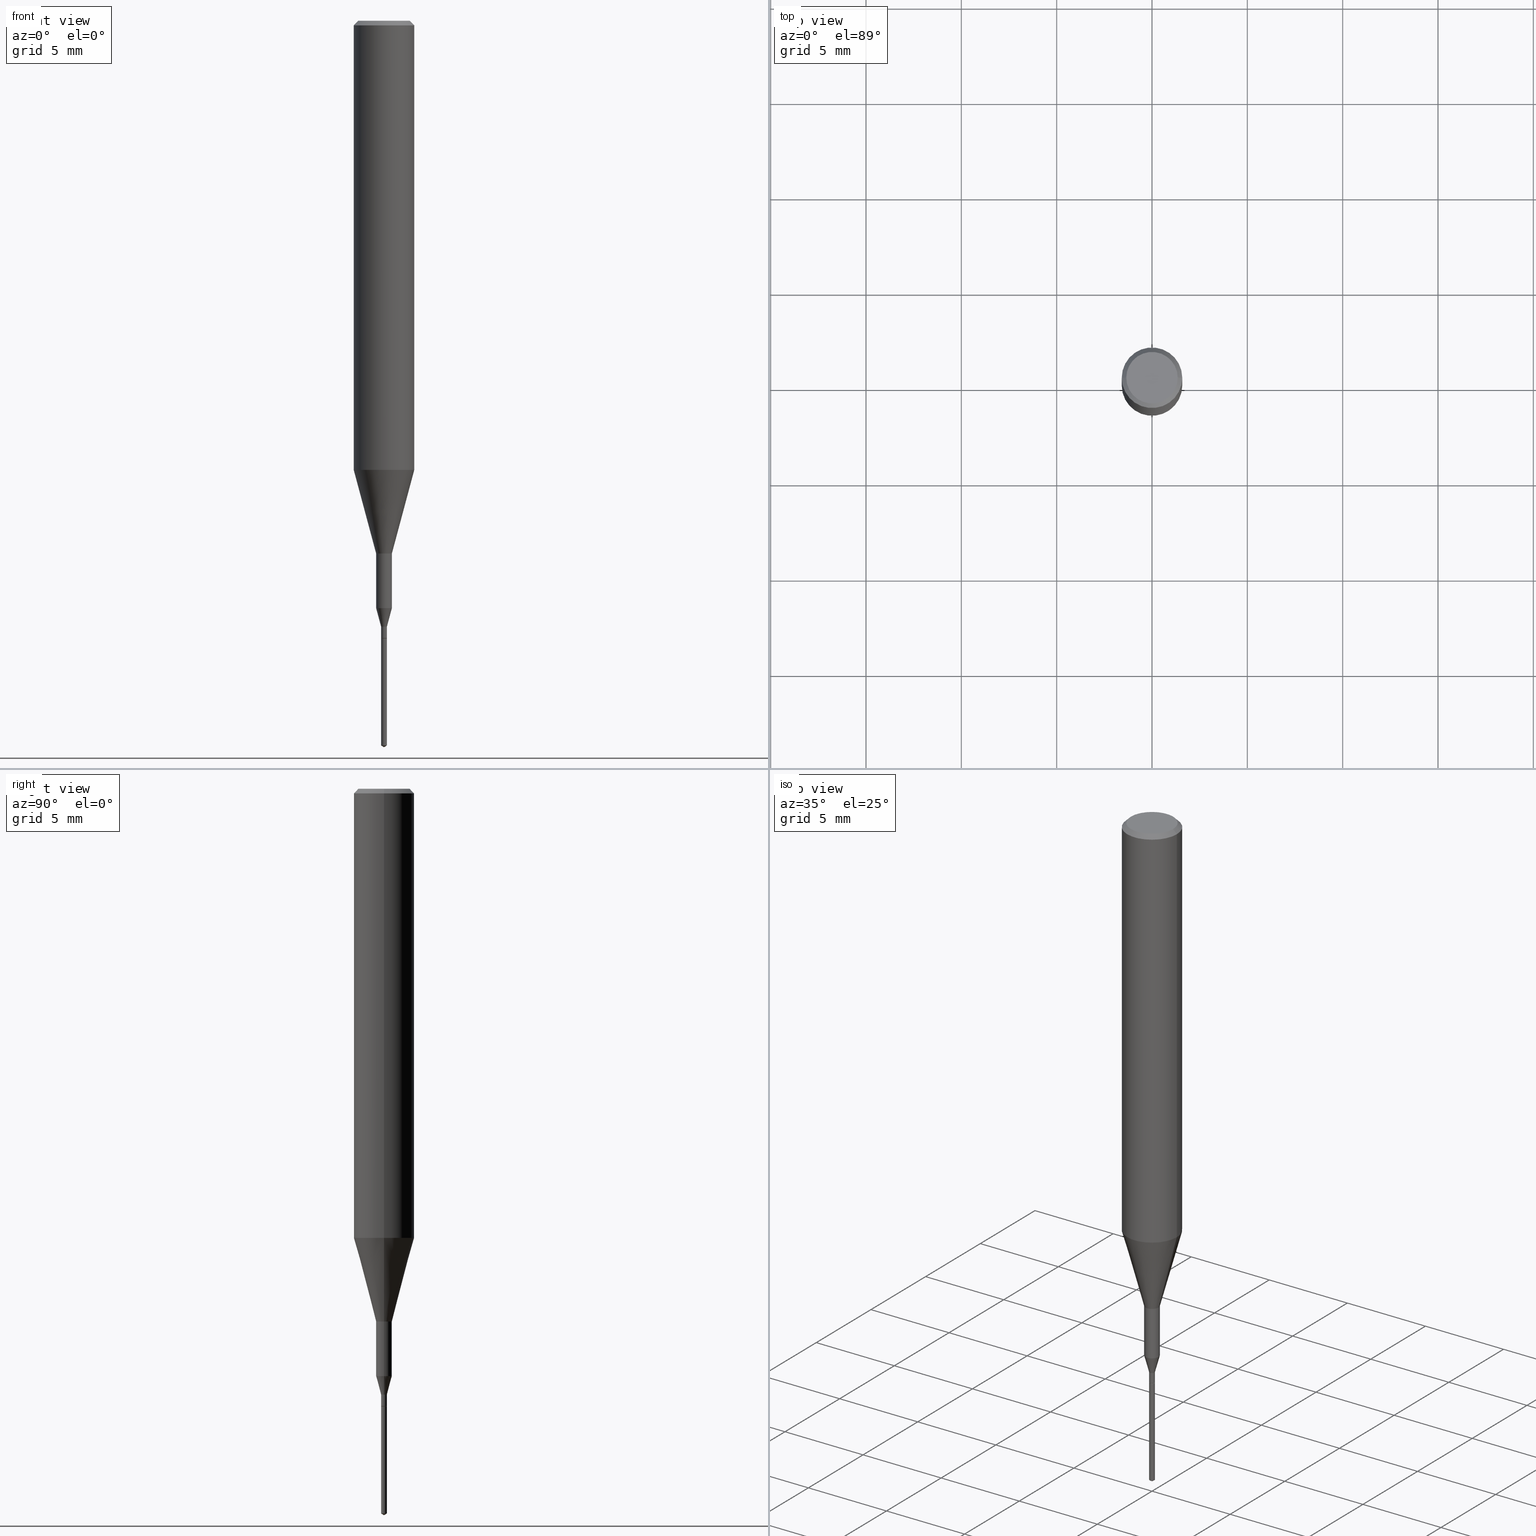
[diagram: canonical four-view strip — front | top / right | iso, engineering-drawing reading convention]
A machine part, canonical four-view strip (front | top / right | iso — engineering-drawing reading convention). The complete STEP part file that produces these views, byte-faithful:
ISO-10303-21;
HEADER;
FILE_DESCRIPTION (( 'STEP AP203' ),
    '1' );
FILE_NAME ('07100.STEP',
    '2024-04-19T13:29:58',
    ( '' ),
    ( '' ),
    'SwSTEP 2.0',
    'SolidWorks 2023',
    '' );
FILE_SCHEMA (( 'CONFIG_CONTROL_DESIGN' ));
ENDSEC;

DATA;
#1 = DIRECTION ( 'NONE',  ( 1.000000000000000000, -6.982962677686245411E-15, 0.000000000000000000 ) ) ;
#2 = CARTESIAN_POINT ( 'NONE',  ( 3.117972727886049049E-29, -4.451638707025011594E-15, -1.275000000000000133 ) ) ;
#3 = AXIS2_PLACEMENT_3D ( 'NONE', #407, #585, #452 ) ;
#4 = VECTOR ( 'NONE', #391, 39.37007874015748143 ) ;
#5 = DIRECTION ( 'NONE',  ( -2.445468806185136597E-29, 3.491481338843145583E-15, 1.000000000000000000 ) ) ;
#6 = AXIS2_PLACEMENT_3D ( 'NONE', #241, #5, #507 ) ;
#7 = CARTESIAN_POINT ( 'NONE',  ( 0.000000000000000000, 0.000000000000000000, 0.000000000000000000 ) ) ;
#8 = EDGE_CURVE ( 'NONE', #190, #219, #488, .T. ) ;
#9 = CARTESIAN_POINT ( 'NONE',  ( -0.005499999999999999681, -4.412558856558206444E-15, -1.275000000000000133 ) ) ;
#10 = VECTOR ( 'NONE', #253, 39.37007874015748143 ) ;
#11 = DIRECTION ( 'NONE',  ( 1.000000000000000000, -6.982962677686311676E-15, 0.000000000000000000 ) ) ;
#12 = CARTESIAN_POINT ( 'NONE',  ( 0.000000000000000000, 0.000000000000000000, 0.000000000000000000 ) ) ;
#13 = FACE_OUTER_BOUND ( 'NONE', #586, .T. ) ;
#14 = ADVANCED_FACE ( 'NONE', ( #103 ), #98, .F. ) ;
#15 =( NAMED_UNIT ( * ) SI_UNIT ( $, .STERADIAN. ) SOLID_ANGLE_UNIT ( ) );
#16 = CARTESIAN_POINT ( 'NONE',  ( 2.965733684749277143E-29, -4.234281700952803100E-15, -1.212746479222419183 ) ) ;
#17 = EDGE_LOOP ( 'NONE', ( #451, #576, #518, #168 ) ) ;
#18 = APPROVAL ( #406, 'UNSPECIFIED' ) ;
#19 = APPROVAL_DATE_TIME ( #257, #404 ) ;
#20 = LINE ( 'NONE', #403, #223 ) ;
#21 = AXIS2_PLACEMENT_3D ( 'NONE', #326, #450, #41 ) ;
#22 = ORIENTED_EDGE ( 'NONE', *, *, #62, .F. ) ;
#23 = LINE ( 'NONE', #174, #115 ) ;
#24 = CARTESIAN_POINT ( 'NONE',  ( 0.006000000000000000125, -4.189777606611760174E-17, 2.925706065477561230E-31 ) ) ;
#25 = LINE ( 'NONE', #178, #322 ) ;
#26 = EDGE_LOOP ( 'NONE', ( #484, #311, #181, #119 ) ) ;
#27 = EDGE_CURVE ( 'NONE', #74, #175, #382, .T. ) ;
#28 = VERTEX_POINT ( 'NONE', #100 ) ;
#29 = DATE_AND_TIME ( #533, #101 ) ;
#30 = ORIENTED_EDGE ( 'NONE', *, *, #342, .T. ) ;
#31 = DIRECTION ( 'NONE',  ( -1.000000000000000000, 6.982962677686266711E-15, 0.000000000000000000 ) ) ;
#32 = VECTOR ( 'NONE', #160, 39.37007874015748143 ) ;
#33 = CIRCLE ( 'NONE', #472, 0.006000000000000000125 ) ;
#34 = ORIENTED_EDGE ( 'NONE', *, *, #295, .F. ) ;
#35 = DIRECTION ( 'NONE',  ( -6.982962677686265922E-15, -1.000000000000000000, 0.000000000000000000 ) ) ;
#36 = ORIENTED_EDGE ( 'NONE', *, *, #525, .T. ) ;
#37 = PERSON_AND_ORGANIZATION ( #333, #203 ) ;
#38 = EDGE_CURVE ( 'NONE', #39, #190, #408, .T. ) ;
#39 = VERTEX_POINT ( 'NONE', #374 ) ;
#40 = DIRECTION ( 'NONE',  ( 1.000000000000000000, -6.982962677686245411E-15, 0.000000000000000000 ) ) ;
#41 = DIRECTION ( 'NONE',  ( 1.000000000000000000, -6.982962677686265922E-15, 0.000000000000000000 ) ) ;
#42 = CC_DESIGN_PERSON_AND_ORGANIZATION_ASSIGNMENT ( #211, #386, ( #443 ) ) ;
#43 = CARTESIAN_POINT ( 'NONE',  ( 2.267909797027042920E-29, -3.237974131778804114E-15, -0.9273926501499395458 ) ) ;
#44 = DIRECTION ( 'NONE',  ( 1.000000000000000000, -6.982962677686266711E-15, 4.875930095424100059E-29 ) ) ;
#45 = ORIENTED_EDGE ( 'NONE', *, *, #165, .F. ) ;
#46 = FACE_OUTER_BOUND ( 'NONE', #356, .T. ) ;
#47 = AXIS2_PLACEMENT_3D ( 'NONE', #290, #147, #239 ) ;
#48 = DIRECTION ( 'NONE',  ( 2.445468806185136597E-29, -3.491481338843145583E-15, -1.000000000000000000 ) ) ;
#49 = APPROVAL_PERSON_ORGANIZATION ( #447, #18, #90 ) ;
#50 = FACE_OUTER_BOUND ( 'NONE', #389, .T. ) ;
#51 = ADVANCED_FACE ( 'NONE', ( #506 ), #297, .T. ) ;
#52 = AXIS2_PLACEMENT_3D ( 'NONE', #312, #227, #521 ) ;
#53 = AXIS2_PLACEMENT_3D ( 'NONE', #430, #568, #307 ) ;
#54 = ADVANCED_FACE ( 'NONE', ( #46 ), #413, .T. ) ;
#55 = LINE ( 'NONE', #556, #195 ) ;
#56 = DIRECTION ( 'NONE',  ( -0.7071067811866064146, 7.493145998870567153E-15, 0.7071067811864886199 ) ) ;
#57 = DIMENSIONAL_EXPONENTS ( 1.000000000000000000, 0.000000000000000000, 0.000000000000000000, 0.000000000000000000, 0.000000000000000000, 0.000000000000000000, 0.000000000000000000 ) ;
#58 = CC_DESIGN_APPROVAL ( #93, ( #395 ) ) ;
#59 = CIRCLE ( 'NONE', #396, 0.01624999999999999709 ) ;
#60 = DIRECTION ( 'NONE',  ( -2.448375364327009624E-29, 3.487318982152967684E-15, 1.000000000000000000 ) ) ;
#61 = CARTESIAN_POINT ( 'NONE',  ( 3.059281476537606349E-29, -4.367843154892775478E-15, -1.251000000000000112 ) ) ;
#62 = EDGE_CURVE ( 'NONE', #229, #279, #485, .T. ) ;
#63 = CARTESIAN_POINT ( 'NONE',  ( -0.01624999999999999709, 1.154631945610162595E-16, -7.993269521664220284E-31 ) ) ;
#64 = CC_DESIGN_PERSON_AND_ORGANIZATION_ASSIGNMENT ( #265, #278, ( #173 ) ) ;
#65 = CARTESIAN_POINT ( 'NONE',  ( 3.117972727886049049E-29, -4.451638707025011594E-15, -1.275000000000000133 ) ) ;
#66 = ORIENTED_EDGE ( 'NONE', *, *, #351, .F. ) ;
#67 = COORDINATED_UNIVERSAL_TIME_OFFSET ( 5, 0, .BEHIND. ) ;
#68 = LINE ( 'NONE', #348, #111 ) ;
#69 = ORIENTED_EDGE ( 'NONE', *, *, #440, .F. ) ;
#70 = DIRECTION ( 'NONE',  ( -2.445468806185136597E-29, 3.491481338843145583E-15, 1.000000000000000000 ) ) ;
#71 = DIRECTION ( 'NONE',  ( -1.000000000000000000, 6.982962677686265922E-15, -4.876176775795935793E-29 ) ) ;
#72 = ADVANCED_FACE ( 'NONE', ( #504 ), #332, .T. ) ;
#73 =( NAMED_UNIT ( * ) PLANE_ANGLE_UNIT ( ) SI_UNIT ( $, .RADIAN. ) );
#74 = VERTEX_POINT ( 'NONE', #236 ) ;
#75 = FACE_OUTER_BOUND ( 'NONE', #583, .T. ) ;
#76 = ORIENTED_EDGE ( 'NONE', *, *, #295, .T. ) ;
#77 = EDGE_LOOP ( 'NONE', ( #95, #69 ) ) ;
#78 = PERSON_AND_ORGANIZATION ( #333, #203 ) ;
#79 = ORIENTED_EDGE ( 'NONE', *, *, #249, .F. ) ;
#80 = CARTESIAN_POINT ( 'NONE',  ( -0.01625000000000000056, -4.118818506391786915E-15, -1.212746479222419183 ) ) ;
#81 = ORIENTED_EDGE ( 'NONE', *, *, #86, .F. ) ;
#82 = ORIENTED_EDGE ( 'NONE', *, *, #550, .F. ) ;
#83 = CARTESIAN_POINT ( 'NONE',  ( -0.06250000000000011102, -2.793884921928740709E-15, -0.9273926501499395458 ) ) ;
#84 = DESIGN_CONTEXT ( 'detailed design', #385, 'design' ) ;
#85 = AXIS2_PLACEMENT_3D ( 'NONE', #349, #526, #122 ) ;
#86 = EDGE_CURVE ( 'NONE', #237, #486, #138, .T. ) ;
#87 = ORIENTED_EDGE ( 'NONE', *, *, #8, .T. ) ;
#88 = CONICAL_SURFACE ( 'NONE', #387, 0.005499999999999999681, 0.7853981633975316567 ) ;
#89 = CIRCLE ( 'NONE', #275, 0.06250000000000000000 ) ;
#90 = APPROVAL_ROLE ( '' ) ;
#91 = ORIENTED_EDGE ( 'NONE', *, *, #461, .T. ) ;
#92 = DIRECTION ( 'NONE',  ( -2.445468806185136597E-29, 3.491481338843145583E-15, 1.000000000000000000 ) ) ;
#93 = APPROVAL ( #579, 'UNSPECIFIED' ) ;
#94 = CARTESIAN_POINT ( 'NONE',  ( 3.116749993482957368E-29, -4.449892966355590090E-15, -1.274500000000000188 ) ) ;
#95 = ORIENTED_EDGE ( 'NONE', *, *, #27, .F. ) ;
#96 = APPROVAL_DATE_TIME ( #29, #93 ) ;
#97 = FACE_OUTER_BOUND ( 'NONE', #287, .T. ) ;
#98 = PLANE ( 'NONE',  #557 ) ;
#99 = CYLINDRICAL_SURFACE ( 'NONE', #286, 0.006000000000000000992 ) ;
#100 = CARTESIAN_POINT ( 'NONE',  ( 0.06250000000000011102, -3.674409299134196572E-15, -0.9273926501499395458 ) ) ;
#101 = LOCAL_TIME ( 9, 29, 58.00000000000000000, #228 ) ;
#102 = CARTESIAN_POINT ( 'NONE',  ( 2.292627005798581499E-31, -3.273263755165471417E-17, -0.009375000000000063838 ) ) ;
#103 = FACE_OUTER_BOUND ( 'NONE', #369, .T. ) ;
#104 = DIRECTION ( 'NONE',  ( -6.982962677686265133E-15, -1.000000000000000000, 3.468864327941785119E-15 ) ) ;
#105 = LINE ( 'NONE', #246, #136 ) ;
#106 = AXIS2_PLACEMENT_3D ( 'NONE', #561, #376, #206 ) ;
#107 = CYLINDRICAL_SURFACE ( 'NONE', #292, 0.06250000000000005551 ) ;
#108 = DIRECTION ( 'NONE',  ( -2.448375364327009624E-29, 3.487318982152967684E-15, 1.000000000000000000 ) ) ;
#109 = DIRECTION ( 'NONE',  ( 6.090539988449690872E-15, 0.8571673007021015644, 0.5150380749100720301 ) ) ;
#110 = AXIS2_PLACEMENT_3D ( 'NONE', #43, #410, #588 ) ;
#111 = VECTOR ( 'NONE', #315, 39.37007874015748143 ) ;
#112 = CARTESIAN_POINT ( 'NONE',  ( 0.01625000000000000056, -4.347754844465204776E-15, -1.212746479222419183 ) ) ;
#113 = CARTESIAN_POINT ( 'NONE',  ( 0.01624999999999999709, -3.954102616239861778E-15, -1.100000000000000089 ) ) ;
#114 = VERTEX_POINT ( 'NONE', #542 ) ;
#115 = VECTOR ( 'NONE', #261, 39.37007874015748143 ) ;
#116 = APPROVAL_STATUS ( 'not_yet_approved' ) ;
#117 = DIRECTION ( 'NONE',  ( -2.445468806185136877E-29, 3.491481338843145188E-15, 1.000000000000000000 ) ) ;
#118 = ORIENTED_EDGE ( 'NONE', *, *, #375, .T. ) ;
#119 = ORIENTED_EDGE ( 'NONE', *, *, #582, .F. ) ;
#120 = ADVANCED_FACE ( 'NONE', ( #198 ), #196, .T. ) ;
#121 = LINE ( 'NONE', #338, #251 ) ;
#122 = DIRECTION ( 'NONE',  ( 1.000000000000000000, -6.982962677686265922E-15, 0.000000000000000000 ) ) ;
#123 = CARTESIAN_POINT ( 'NONE',  ( 4.263256414563719053E-17, 0.005999999999995548824, -1.275000000000000133 ) ) ;
#124 = CARTESIAN_POINT ( 'NONE',  ( 4.263256414564260779E-17, 0.005999999999994776005, -1.496394836285834584 ) ) ;
#125 = LINE ( 'NONE', #388, #546 ) ;
#126 = APPLICATION_CONTEXT ( 'configuration controlled 3d designs of mechanical parts and assemblies' ) ;
#127 = ORIENTED_EDGE ( 'NONE', *, *, #179, .F. ) ;
#128 = ORIENTED_EDGE ( 'NONE', *, *, #240, .T. ) ;
#129 = CYLINDRICAL_SURFACE ( 'NONE', #444, 0.006000000000000000992 ) ;
#130 = EDGE_CURVE ( 'NONE', #368, #28, #498, .T. ) ;
#131 = ORIENTED_EDGE ( 'NONE', *, *, #281, .T. ) ;
#132 = EDGE_CURVE ( 'NONE', #441, #39, #293, .T. ) ;
#133 = ADVANCED_FACE ( 'NONE', ( #157 ), #541, .T. ) ;
#134 = ORIENTED_EDGE ( 'NONE', *, *, #179, .T. ) ;
#135 = CARTESIAN_POINT ( 'NONE',  ( 3.672563046490514996E-29, -5.230978473229451328E-15, -1.500000000000000222 ) ) ;
#136 = VECTOR ( 'NONE', #109, 39.37007874015748143 ) ;
#137 = ORIENTED_EDGE ( 'NONE', *, *, #156, .T. ) ;
#138 = CIRCLE ( 'NONE', #445, 0.05312499999999999861 ) ;
#139 = PERSON_AND_ORGANIZATION_ROLE ( 'classification_officer' ) ;
#140 = CARTESIAN_POINT ( 'NONE',  ( 0.06250000000000000000, -4.615137624123754923E-16, -0.009375000000000063838 ) ) ;
#141 = CARTESIAN_POINT ( 'NONE',  ( 2.690015686803650369E-29, -3.840629472727460101E-15, -1.100000000000000089 ) ) ;
#142 = CARTESIAN_POINT ( 'NONE',  ( 2.690015686803650369E-29, -3.840629472727460101E-15, -1.100000000000000089 ) ) ;
#143 = ADVANCED_FACE ( 'NONE', ( #50 ), #365, .T. ) ;
#144 = CARTESIAN_POINT ( 'NONE',  ( 2.267909797027042920E-29, -3.237974131778804114E-15, -0.9273926501499395458 ) ) ;
#145 = DIRECTION ( 'NONE',  ( 1.000000000000000000, -6.982962677686259611E-15, 0.000000000000000000 ) ) ;
#146 = AXIS2_PLACEMENT_3D ( 'NONE', #427, #212, #263 ) ;
#147 = DIRECTION ( 'NONE',  ( -2.445468806185136597E-29, 3.491481338843145583E-15, 1.000000000000000000 ) ) ;
#148 = DIRECTION ( 'NONE',  ( -2.445468806185136597E-29, 3.491481338843145583E-15, 1.000000000000000000 ) ) ;
#149 = EDGE_CURVE ( 'NONE', #366, #316, #89, .T. ) ;
#150 = CC_DESIGN_PERSON_AND_ORGANIZATION_ASSIGNMENT ( #520, #309, ( #247 ) ) ;
#151 = CARTESIAN_POINT ( 'NONE',  ( -4.189777606608642325E-17, -0.006000000000004453160, -1.275000000000000133 ) ) ;
#152 = CARTESIAN_POINT ( 'NONE',  ( 3.117972727886049049E-29, -4.451638707025011594E-15, -1.275000000000000133 ) ) ;
#153 = LENGTH_MEASURE_WITH_UNIT ( LENGTH_MEASURE( 0.02539999999999999897 ), #476 );
#154 = DIRECTION ( 'NONE',  ( -2.448375364327009904E-29, 3.487318982152967289E-15, 1.000000000000000000 ) ) ;
#155 = CLOSED_SHELL ( 'NONE', ( #51, #256, #402, #54, #143, #72, #200, #259, #547, #390, #553, #177, #120, #508, #335, #421 ) ) ;
#156 = EDGE_CURVE ( 'NONE', #532, #210, #418, .T. ) ;
#157 = FACE_OUTER_BOUND ( 'NONE', #221, .T. ) ;
#158 = VECTOR ( 'NONE', #60, 39.37007874015748143 ) ;
#159 = AXIS2_PLACEMENT_3D ( 'NONE', #216, #527, #442 ) ;
#160 = DIRECTION ( 'NONE',  ( 0.2588190451025203509, 1.565188264969630053E-15, 0.9659258262890684232 ) ) ;
#161 = FACE_OUTER_BOUND ( 'NONE', #17, .T. ) ;
#162 = EDGE_LOOP ( 'NONE', ( #495, #399 ) ) ;
#163 = AXIS2_PLACEMENT_3D ( 'NONE', #398, #491, #354 ) ;
#164 = AXIS2_PLACEMENT_3D ( 'NONE', #383, #154, #384 ) ;
#165 = EDGE_CURVE ( 'NONE', #188, #436, #245, .T. ) ;
#166 = CARTESIAN_POINT ( 'NONE',  ( 2.965733684749277143E-29, -4.234281700952803100E-15, -1.212746479222419183 ) ) ;
#167 = FACE_OUTER_BOUND ( 'NONE', #313, .T. ) ;
#168 = ORIENTED_EDGE ( 'NONE', *, *, #469, .F. ) ;
#169 = LINE ( 'NONE', #123, #158 ) ;
#170 = DIRECTION ( 'NONE',  ( -2.445468806185136597E-29, 3.491481338843145583E-15, 1.000000000000000000 ) ) ;
#171 = ORIENTED_EDGE ( 'NONE', *, *, #523, .T. ) ;
#172 = APPROVAL_ROLE ( '' ) ;
#173 = PRODUCT_DEFINITION_FORMATION_WITH_SPECIFIED_SOURCE ( 'ANY', '', #247, .NOT_KNOWN. ) ;
#174 = CARTESIAN_POINT ( 'NONE',  ( -0.06250000000000000000, 4.037025298037369491E-16, -0.009375000000000063838 ) ) ;
#175 = VERTEX_POINT ( 'NONE', #516 ) ;
#176 = ORIENTED_EDGE ( 'NONE', *, *, #536, .F. ) ;
#177 = ADVANCED_FACE ( 'NONE', ( #161 ), #300, .T. ) ;
#178 = CARTESIAN_POINT ( 'NONE',  ( 0.06250000000000005551, -4.364351673553920638E-16, 3.047610484872462323E-30 ) ) ;
#179 = EDGE_CURVE ( 'NONE', #464, #350, #105, .T. ) ;
#180 = EDGE_LOOP ( 'NONE', ( #455, #272, #186, #34 ) ) ;
#181 = ORIENTED_EDGE ( 'NONE', *, *, #197, .F. ) ;
#182 = DIRECTION ( 'NONE',  ( -6.982962677686265922E-15, -1.000000000000000000, 0.000000000000000000 ) ) ;
#183 = ORIENTED_EDGE ( 'NONE', *, *, #525, .F. ) ;
#184 = COORDINATED_UNIVERSAL_TIME_OFFSET ( 5, 0, .BEHIND. ) ;
#185 = CARTESIAN_POINT ( 'NONE',  ( 3.665151323228738497E-29, -5.241592482789406233E-15, -1.500000000000000222 ) ) ;
#186 = ORIENTED_EDGE ( 'NONE', *, *, #306, .T. ) ;
#187 = ADVANCED_FACE ( 'NONE', ( #13 ), #549, .T. ) ;
#188 = VERTEX_POINT ( 'NONE', #204 ) ;
#189 = LINE ( 'NONE', #24, #10 ) ;
#190 = VERTEX_POINT ( 'NONE', #113 ) ;
#191 = VECTOR ( 'NONE', #282, 39.37007874015748143 ) ;
#192 = ORIENTED_EDGE ( 'NONE', *, *, #563, .T. ) ;
#193 = DIRECTION ( 'NONE',  ( 1.000000000000000000, -6.982962677686192558E-15, 0.000000000000000000 ) ) ;
#194 = APPROVAL_PERSON_ORGANIZATION ( #515, #404, #305 ) ;
#195 = VECTOR ( 'NONE', #425, 39.37007874015748143 ) ;
#196 = CONICAL_SURFACE ( 'NONE', #21, 0.06250000000000011102, 0.2617993877991501850 ) ;
#197 = EDGE_CURVE ( 'NONE', #210, #532, #497, .T. ) ;
#198 = FACE_OUTER_BOUND ( 'NONE', #435, .T. ) ;
#199 = PRODUCT_DEFINITION_SHAPE ( 'NONE', 'NONE',  #443 ) ;
#200 = ADVANCED_FACE ( 'NONE', ( #303 ), #88, .T. ) ;
#201 = CARTESIAN_POINT ( 'NONE',  ( 2.292627005798581499E-31, -3.273263755165471417E-17, -0.009375000000000063838 ) ) ;
#202 = LINE ( 'NONE', #514, #302 ) ;
#203 = ORGANIZATION ( 'UNSPECIFIED', 'UNSPECIFIED', '' ) ;
#204 = CARTESIAN_POINT ( 'NONE',  ( 0.006000000000000018339, -4.409740930958893142E-15, -1.251000000000000112 ) ) ;
#205 = DIRECTION ( 'NONE',  ( 0.000000000000000000, 0.000000000000000000, 1.000000000000000000 ) ) ;
#206 = DIRECTION ( 'NONE',  ( 1.000000000000000000, -6.982962677686258033E-15, 0.000000000000000000 ) ) ;
#207 = AXIS2_PLACEMENT_3D ( 'NONE', #284, #544, #1 ) ;
#208 = DIRECTION ( 'NONE',  ( 1.000000000000000000, 0.000000000000000000, 0.000000000000000000 ) ) ;
#209 = DIRECTION ( 'NONE',  ( 0.2588190451025214611, 1.565188264969620982E-15, 0.9659258262890679791 ) ) ;
#210 = VERTEX_POINT ( 'NONE', #151 ) ;
#211 = PERSON_AND_ORGANIZATION ( #333, #203 ) ;
#212 = DIRECTION ( 'NONE',  ( -2.445468806185136597E-29, 3.491481338843145583E-15, 1.000000000000000000 ) ) ;
#213 = ORIENTED_EDGE ( 'NONE', *, *, #461, .F. ) ;
#214 = AXIS2_PLACEMENT_3D ( 'NONE', #16, #468, #462 ) ;
#215 = COORDINATED_UNIVERSAL_TIME_OFFSET ( 5, 0, .BEHIND. ) ;
#216 = CARTESIAN_POINT ( 'NONE',  ( 1.415359278996747967E-46, -2.020757941330909984E-32, -5.787680772770392401E-18 ) ) ;
#217 = AXIS2_PLACEMENT_3D ( 'NONE', #94, #148, #193 ) ;
#218 = DATE_AND_TIME ( #567, #319 ) ;
#219 = VERTEX_POINT ( 'NONE', #380 ) ;
#220 = FACE_OUTER_BOUND ( 'NONE', #264, .T. ) ;
#221 = EDGE_LOOP ( 'NONE', ( #127, #91, #66 ) ) ;
#222 = ORIENTED_EDGE ( 'NONE', *, *, #454, .F. ) ;
#223 = VECTOR ( 'NONE', #258, 39.37007874015748143 ) ;
#224 = DIRECTION ( 'NONE',  ( 2.445468806185136597E-29, -3.491481338843145583E-15, -1.000000000000000000 ) ) ;
#225 = EDGE_LOOP ( 'NONE', ( #453, #118, #45, #183 ) ) ;
#226 = COORDINATED_UNIVERSAL_TIME_OFFSET ( 5, 0, .BEHIND. ) ;
#227 = DIRECTION ( 'NONE',  ( -2.438088387897960049E-29, 3.491481338843145188E-15, 1.000000000000000000 ) ) ;
#228 = COORDINATED_UNIVERSAL_TIME_OFFSET ( 5, 0, .BEHIND. ) ;
#229 = VERTEX_POINT ( 'NONE', #254 ) ;
#230 = CARTESIAN_POINT ( 'NONE',  ( 0.05312499999999999861, -4.129888592719939842E-16, -5.787680772767651417E-18 ) ) ;
#231 = DIRECTION ( 'NONE',  ( -2.445468806185136597E-29, 3.491481338843145583E-15, 1.000000000000000000 ) ) ;
#232 = EDGE_CURVE ( 'NONE', #219, #368, #55, .T. ) ;
#233 = ORIENTED_EDGE ( 'NONE', *, *, #8, .F. ) ;
#234 = LINE ( 'NONE', #185, #330 ) ;
#235 = CONICAL_SURFACE ( 'NONE', #554, 0.005499999999999999681, 0.7853981633975316567 ) ;
#236 = CARTESIAN_POINT ( 'NONE',  ( 0.005499999999999999681, -4.490045001752285461E-15, -1.275000000000000133 ) ) ;
#237 = VERTEX_POINT ( 'NONE', #336 ) ;
#238 = AXIS2_PLACEMENT_3D ( 'NONE', #141, #460, #145 ) ;
#239 = DIRECTION ( 'NONE',  ( 1.000000000000000000, -6.982962677686267499E-15, 4.876176775795936353E-29 ) ) ;
#240 = EDGE_CURVE ( 'NONE', #190, #28, #202, .T. ) ;
#241 = CARTESIAN_POINT ( 'NONE',  ( 0.000000000000000000, 0.000000000000000000, 0.000000000000000000 ) ) ;
#242 = EDGE_CURVE ( 'NONE', #114, #350, #465, .T. ) ;
#243 = AXIS2_PLACEMENT_3D ( 'NONE', #496, #92, #40 ) ;
#244 = CIRCLE ( 'NONE', #53, 0.06250000000000000000 ) ;
#245 = CIRCLE ( 'NONE', #566, 0.006000000000000018339 ) ;
#246 = CARTESIAN_POINT ( 'NONE',  ( 3.672628038554684134E-29, -5.230978473229451328E-15, -1.500000000000000222 ) ) ;
#247 = PRODUCT ( '07100', '07100', '', ( #346 ) ) ;
#248 = DIRECTION ( 'NONE',  ( -2.448375364327009904E-29, 3.487318982152967289E-15, 1.000000000000000000 ) ) ;
#249 = EDGE_CURVE ( 'NONE', #175, #229, #337, .T. ) ;
#250 = DIRECTION ( 'NONE',  ( -2.445468806185136597E-29, 3.491481338843145583E-15, 1.000000000000000000 ) ) ;
#251 = VECTOR ( 'NONE', #108, 39.37007874015748143 ) ;
#252 = CARTESIAN_POINT ( 'NONE',  ( 3.660030390837498289E-29, -5.223713122155250099E-15, -1.496394836285834584 ) ) ;
#253 = DIRECTION ( 'NONE',  ( -2.445468806185136877E-29, 3.491481338843145188E-15, 1.000000000000000000 ) ) ;
#254 = CARTESIAN_POINT ( 'NONE',  ( -0.005999999999999981910, -4.407260402209984830E-15, -1.274500000000000188 ) ) ;
#255 = ORIENTED_EDGE ( 'NONE', *, *, #304, .T. ) ;
#256 = ADVANCED_FACE ( 'NONE', ( #512 ), #107, .T. ) ;
#257 = DATE_AND_TIME ( #478, #343 ) ;
#258 = DIRECTION ( 'NONE',  ( -2.445468806185136877E-29, 3.491481338843145188E-15, 1.000000000000000000 ) ) ;
#259 = ADVANCED_FACE ( 'NONE', ( #424 ), #530, .F. ) ;
#260 = CC_DESIGN_APPROVAL ( #18, ( #173 ) ) ;
#261 = DIRECTION ( 'NONE',  ( -0.7071067811865453523, 2.468850131082234184E-15, -0.7071067811865496822 ) ) ;
#262 = ORIENTED_EDGE ( 'NONE', *, *, #240, .F. ) ;
#263 = DIRECTION ( 'NONE',  ( 1.000000000000000000, -6.982962677686266711E-15, 4.876176775795935232E-29 ) ) ;
#264 = EDGE_LOOP ( 'NONE', ( #531, #537, #36, #328 ) ) ;
#265 = PERSON_AND_ORGANIZATION ( #333, #203 ) ;
#266 = CARTESIAN_POINT ( 'NONE',  ( 0.005999999999999981910, -4.491790742421706965E-15, -1.274500000000000188 ) ) ;
#267 = UNCERTAINTY_MEASURE_WITH_UNIT (LENGTH_MEASURE( 1.000000000000000082E-05 ), #524, 'distance_accuracy_value', 'NONE');
#268 = ORIENTED_EDGE ( 'NONE', *, *, #361, .T. ) ;
#269 = SECURITY_CLASSIFICATION_LEVEL ( 'unclassified' ) ;
#270 =( GEOMETRIC_REPRESENTATION_CONTEXT ( 3 ) GLOBAL_UNCERTAINTY_ASSIGNED_CONTEXT ( ( #267 ) ) GLOBAL_UNIT_ASSIGNED_CONTEXT ( ( #524, #73, #15 ) ) REPRESENTATION_CONTEXT ( 'NONE', 'WORKASPACE' ) );
#271 = AXIS2_PLACEMENT_3D ( 'NONE', #434, #487, #71 ) ;
#272 = ORIENTED_EDGE ( 'NONE', *, *, #454, .T. ) ;
#273 = DIRECTION ( 'NONE',  ( -2.445468806185136877E-29, 3.491481338843145188E-15, 1.000000000000000000 ) ) ;
#274 = CIRCLE ( 'NONE', #163, 0.01625000000000000056 ) ;
#275 = AXIS2_PLACEMENT_3D ( 'NONE', #201, #555, #474 ) ;
#276 = EDGE_LOOP ( 'NONE', ( #317, #534, #457, #571 ) ) ;
#277 = ORIENTED_EDGE ( 'NONE', *, *, #351, .T. ) ;
#278 = PERSON_AND_ORGANIZATION_ROLE ( 'creator' ) ;
#279 = VERTEX_POINT ( 'NONE', #266 ) ;
#280 = FACE_OUTER_BOUND ( 'NONE', #364, .T. ) ;
#281 = EDGE_CURVE ( 'NONE', #28, #316, #25, .T. ) ;
#282 = DIRECTION ( 'NONE',  ( -2.445468806185136877E-29, 3.491481338843145188E-15, 1.000000000000000000 ) ) ;
#283 = CARTESIAN_POINT ( 'NONE',  ( 3.117972727886049049E-29, -4.451638707025011594E-15, -1.275000000000000133 ) ) ;
#284 = CARTESIAN_POINT ( 'NONE',  ( 3.117972727886049049E-29, -4.451638707025011594E-15, -1.275000000000000133 ) ) ;
#285 = CARTESIAN_POINT ( 'NONE',  ( -0.01625000000000000056, -4.118818506391786915E-15, -1.212746479222419183 ) ) ;
#286 = AXIS2_PLACEMENT_3D ( 'NONE', #283, #321, #182 ) ;
#287 = EDGE_LOOP ( 'NONE', ( #82, #277, #334, #394 ) ) ;
#288 = EDGE_LOOP ( 'NONE', ( #79, #575, #268, #22 ) ) ;
#289 = ADVANCED_FACE ( 'NONE', ( #572 ), #129, .T. ) ;
#290 = CARTESIAN_POINT ( 'NONE',  ( 0.000000000000000000, 0.000000000000000000, 0.000000000000000000 ) ) ;
#291 = DIRECTION ( 'NONE',  ( -2.445468806185136597E-29, 3.491481338843145583E-15, 1.000000000000000000 ) ) ;
#292 = AXIS2_PLACEMENT_3D ( 'NONE', #296, #250, #423 ) ;
#293 = CIRCLE ( 'NONE', #214, 0.01625000000000000056 ) ;
#294 = DIRECTION ( 'NONE',  ( 1.000000000000000000, -6.982962677686267499E-15, 4.876176775795936353E-29 ) ) ;
#295 = EDGE_CURVE ( 'NONE', #237, #366, #23, .T. ) ;
#296 = CARTESIAN_POINT ( 'NONE',  ( 0.000000000000000000, 0.000000000000000000, 0.000000000000000000 ) ) ;
#297 = CONICAL_SURFACE ( 'NONE', #298, 0.06250000000000000000, 0.7853981633974452814 ) ;
#298 = AXIS2_PLACEMENT_3D ( 'NONE', #102, #48, #551 ) ;
#299 = DIRECTION ( 'NONE',  ( 1.000000000000000000, -6.982962677686245411E-15, 0.000000000000000000 ) ) ;
#300 = CYLINDRICAL_SURFACE ( 'NONE', #417, 0.01624999999999999709 ) ;
#301 = FACE_OUTER_BOUND ( 'NONE', #288, .T. ) ;
#302 = VECTOR ( 'NONE', #209, 39.37007874015748143 ) ;
#303 = FACE_OUTER_BOUND ( 'NONE', #276, .T. ) ;
#304 = EDGE_CURVE ( 'NONE', #39, #441, #274, .T. ) ;
#305 = APPROVAL_ROLE ( '' ) ;
#306 = EDGE_CURVE ( 'NONE', #316, #366, #244, .T. ) ;
#307 = DIRECTION ( 'NONE',  ( 1.000000000000000000, -6.982962677686266711E-15, 0.000000000000000000 ) ) ;
#308 = ORIENTED_EDGE ( 'NONE', *, *, #197, .T. ) ;
#309 = PERSON_AND_ORGANIZATION_ROLE ( 'design_owner' ) ;
#310 = FACE_OUTER_BOUND ( 'NONE', #162, .T. ) ;
#311 = ORIENTED_EDGE ( 'NONE', *, *, #550, .T. ) ;
#312 = CARTESIAN_POINT ( 'NONE',  ( 3.117972727886049049E-29, -4.451638707025011594E-15, -1.275000000000000133 ) ) ;
#313 = EDGE_LOOP ( 'NONE', ( #87, #370, #489, #262 ) ) ;
#314 = ORIENTED_EDGE ( 'NONE', *, *, #306, .F. ) ;
#315 = DIRECTION ( 'NONE',  ( 0.7071067811866064146, -2.468850131082873950E-15, 0.7071067811864886199 ) ) ;
#316 = VERTEX_POINT ( 'NONE', #529 ) ;
#317 = ORIENTED_EDGE ( 'NONE', *, *, #27, .T. ) ;
#318 = DIRECTION ( 'NONE',  ( -2.448375364327009904E-29, 3.487318982152967289E-15, 1.000000000000000000 ) ) ;
#319 = LOCAL_TIME ( 9, 29, 58.00000000000000000, #215 ) ;
#320 = CIRCLE ( 'NONE', #493, 0.006000000000000018339 ) ;
#321 = DIRECTION ( 'NONE',  ( -2.448375364327009904E-29, 3.487318982152967289E-15, 1.000000000000000000 ) ) ;
#322 = VECTOR ( 'NONE', #117, 39.37007874015748143 ) ;
#323 = CALENDAR_DATE ( 2024, 19, 4 ) ;
#324 = DIRECTION ( 'NONE',  ( 1.000000000000000000, -6.982962677686192558E-15, 0.000000000000000000 ) ) ;
#325 = CC_DESIGN_DATE_AND_TIME_ASSIGNMENT ( #499, #358, ( #395 ) ) ;
#326 = CARTESIAN_POINT ( 'NONE',  ( 2.267909797027042920E-29, -3.237974131778804114E-15, -0.9273926501499395458 ) ) ;
#327 = DIRECTION ( 'NONE',  ( -2.445468806185136597E-29, 3.491481338843145583E-15, 1.000000000000000000 ) ) ;
#328 = ORIENTED_EDGE ( 'NONE', *, *, #431, .F. ) ;
#329 = CIRCLE ( 'NONE', #110, 0.06250000000000011102 ) ;
#330 = VECTOR ( 'NONE', #543, 39.37007874015748854 ) ;
#331 = CARTESIAN_POINT ( 'NONE',  ( 0.01624999999999999709, -1.134731435124018242E-16, 7.923787260668394963E-31 ) ) ;
#332 = CYLINDRICAL_SURFACE ( 'NONE', #6, 0.006000000000000000125 ) ;
#333 = PERSON ( 'UNSPECIFIED', 'UNSPECIFIED', 'UNSPECIFIED', ('UNSPECIFIED'), ('UNSPECIFIED'), ('UNSPECIFIED') ) ;
#334 = ORIENTED_EDGE ( 'NONE', *, *, #582, .T. ) ;
#335 = ADVANCED_FACE ( 'NONE', ( #75 ), #562, .T. ) ;
#336 = CARTESIAN_POINT ( 'NONE',  ( -0.05312499999999999861, 3.873362110279099094E-16, -5.787680772773044021E-18 ) ) ;
#337 = LINE ( 'NONE', #9, #565 ) ;
#338 = CARTESIAN_POINT ( 'NONE',  ( -4.189777606608642325E-17, -0.006000000000004453160, -1.275000000000000133 ) ) ;
#339 = DIRECTION ( 'NONE',  ( -6.982962677686265922E-15, -1.000000000000000000, 0.000000000000000000 ) ) ;
#340 = APPLICATION_PROTOCOL_DEFINITION ( 'international standard', 'config_control_design', 1994, #385 ) ;
#341 = DIRECTION ( 'NONE',  ( -6.982962677686265133E-15, -1.000000000000000000, 3.468864327941785119E-15 ) ) ;
#342 = EDGE_CURVE ( 'NONE', #368, #366, #125, .T. ) ;
#343 = LOCAL_TIME ( 9, 29, 58.00000000000000000, #67 ) ;
#344 = CIRCLE ( 'NONE', #243, 0.005499999999999999681 ) ;
#345 = CC_DESIGN_DATE_AND_TIME_ASSIGNMENT ( #218, #538, ( #443 ) ) ;
#346 = MECHANICAL_CONTEXT ( 'NONE', #126, 'mechanical' ) ;
#347 = AXIS2_PLACEMENT_3D ( 'NONE', #252, #248, #422 ) ;
#348 = CARTESIAN_POINT ( 'NONE',  ( 0.005499999999999999681, -4.490045001752285461E-15, -1.275000000000000133 ) ) ;
#349 = CARTESIAN_POINT ( 'NONE',  ( 2.267909797027042920E-29, -3.237974131778804114E-15, -0.9273926501499395458 ) ) ;
#350 = VERTEX_POINT ( 'NONE', #124 ) ;
#351 = EDGE_CURVE ( 'NONE', #350, #114, #33, .T. ) ;
#352 = CARTESIAN_POINT ( 'NONE',  ( 2.292627005798581499E-31, -3.273263755165471417E-17, -0.009375000000000063838 ) ) ;
#353 = AXIS2_PLACEMENT_3D ( 'NONE', #12, #205, #208 ) ;
#354 = DIRECTION ( 'NONE',  ( 1.000000000000000000, -6.982962677686258033E-15, 0.000000000000000000 ) ) ;
#355 = ORIENTED_EDGE ( 'NONE', *, *, #149, .F. ) ;
#356 = EDGE_LOOP ( 'NONE', ( #255, #192, #233, #480 ) ) ;
#357 = DIRECTION ( 'NONE',  ( -2.448375364327009904E-29, 3.487318982152967289E-15, 1.000000000000000000 ) ) ;
#358 = DATE_TIME_ROLE ( 'classification_date' ) ;
#359 = ORIENTED_EDGE ( 'NONE', *, *, #342, .F. ) ;
#360 = CARTESIAN_POINT ( 'NONE',  ( -0.006000000000000018339, -4.366235496478576735E-15, -1.251000000000000112 ) ) ;
#361 = EDGE_CURVE ( 'NONE', #74, #279, #68, .T. ) ;
#362 = DATE_AND_TIME ( #584, #505 ) ;
#363 = DIRECTION ( 'NONE',  ( 0.7071067811865453523, -7.319954787623248157E-15, -0.7071067811865496822 ) ) ;
#364 = EDGE_LOOP ( 'NONE', ( #359, #433, #131, #355 ) ) ;
#365 = CONICAL_SURFACE ( 'NONE', #106, 0.01625000000000000056, 0.2617993877991490193 ) ;
#366 = VERTEX_POINT ( 'NONE', #577 ) ;
#367 = LINE ( 'NONE', #140, #574 ) ;
#368 = VERTEX_POINT ( 'NONE', #83 ) ;
#369 = EDGE_LOOP ( 'NONE', ( #308, #137 ) ) ;
#370 = ORIENTED_EDGE ( 'NONE', *, *, #232, .T. ) ;
#371 = AXIS2_PLACEMENT_3D ( 'NONE', #352, #224, #31 ) ;
#372 = EDGE_LOOP ( 'NONE', ( #522, #545, #494, #420 ) ) ;
#373 = AXIS2_PLACEMENT_3D ( 'NONE', #152, #419, #339 ) ;
#374 = CARTESIAN_POINT ( 'NONE',  ( 0.01625000000000000056, -4.347754844465204776E-15, -1.212746479222419183 ) ) ;
#375 = EDGE_CURVE ( 'NONE', #229, #436, #20, .T. ) ;
#376 = DIRECTION ( 'NONE',  ( -2.445468806185136597E-29, 3.491481338843145583E-15, 1.000000000000000000 ) ) ;
#377 = DIRECTION ( 'NONE',  ( 1.000000000000000000, -6.982962677686245411E-15, 0.000000000000000000 ) ) ;
#378 = AXIS2_PLACEMENT_3D ( 'NONE', #535, #327, #324 ) ;
#379 = LINE ( 'NONE', #112, #32 ) ;
#380 = CARTESIAN_POINT ( 'NONE',  ( -0.01624999999999999709, -3.921992392279115415E-15, -1.100000000000000089 ) ) ;
#381 = EDGE_CURVE ( 'NONE', #486, #237, #415, .T. ) ;
#382 = CIRCLE ( 'NONE', #207, 0.005499999999999999681 ) ;
#383 = CARTESIAN_POINT ( 'NONE',  ( 3.117972727886049049E-29, -4.451638707025011594E-15, -1.275000000000000133 ) ) ;
#384 = DIRECTION ( 'NONE',  ( -6.982962677686265922E-15, -1.000000000000000000, 0.000000000000000000 ) ) ;
#385 = APPLICATION_CONTEXT ( 'configuration controlled 3d designs of mechanical parts and assemblies' ) ;
#386 = PERSON_AND_ORGANIZATION_ROLE ( 'creator' ) ;
#387 = AXIS2_PLACEMENT_3D ( 'NONE', #65, #467, #377 ) ;
#388 = CARTESIAN_POINT ( 'NONE',  ( -0.06250000000000005551, 4.440892098500630106E-16, -3.074334431409318916E-30 ) ) ;
#389 = EDGE_LOOP ( 'NONE', ( #438, #405, #580, #176 ) ) ;
#390 = ADVANCED_FACE ( 'NONE', ( #220 ), #393, .T. ) ;
#391 = DIRECTION ( 'NONE',  ( -0.2588190451025203509, 5.211531920934543942E-15, 0.9659258262890684232 ) ) ;
#392 = MANIFOLD_SOLID_BREP ( 'Body-Move/Copy2[2]', #155 ) ;
#393 = CYLINDRICAL_SURFACE ( 'NONE', #146, 0.006000000000000000125 ) ;
#394 = ORIENTED_EDGE ( 'NONE', *, *, #156, .F. ) ;
#395 = SECURITY_CLASSIFICATION ( '', '', #269 ) ;
#396 = AXIS2_PLACEMENT_3D ( 'NONE', #142, #503, #500 ) ;
#397 = PERSON_AND_ORGANIZATION_ROLE ( 'design_supplier' ) ;
#398 = CARTESIAN_POINT ( 'NONE',  ( 2.965733684749277143E-29, -4.234281700952803100E-15, -1.212746479222419183 ) ) ;
#399 = ORIENTED_EDGE ( 'NONE', *, *, #381, .T. ) ;
#400 = ORIENTED_EDGE ( 'NONE', *, *, #242, .F. ) ;
#401 = APPROVAL_DATE_TIME ( #362, #18 ) ;
#402 = ADVANCED_FACE ( 'NONE', ( #167 ), #517, .T. ) ;
#403 = CARTESIAN_POINT ( 'NONE',  ( -0.006000000000000000125, 4.263256414560601204E-17, -2.951361054152943501E-31 ) ) ;
#404 = APPROVAL ( #116, 'UNSPECIFIED' ) ;
#405 = ORIENTED_EDGE ( 'NONE', *, *, #428, .T. ) ;
#406 = APPROVAL_STATUS ( 'not_yet_approved' ) ;
#407 = CARTESIAN_POINT ( 'NONE',  ( 0.000000000000000000, 0.000000000000000000, 0.000000000000000000 ) ) ;
#408 = LINE ( 'NONE', #331, #191 ) ;
#409 = AXIS2_PLACEMENT_3D ( 'NONE', #166, #70, #482 ) ;
#410 = DIRECTION ( 'NONE',  ( -2.445468806185136597E-29, 3.491481338843145583E-15, 1.000000000000000000 ) ) ;
#411 = DIRECTION ( 'NONE',  ( 6.982962677686265922E-15, 1.000000000000000000, -3.487318982152967684E-15 ) ) ;
#412 = ORIENTED_EDGE ( 'NONE', *, *, #281, .F. ) ;
#413 = CYLINDRICAL_SURFACE ( 'NONE', #47, 0.01624999999999999709 ) ;
#414 = CIRCLE ( 'NONE', #378, 0.005999999999999981910 ) ;
#415 = CIRCLE ( 'NONE', #159, 0.05312499999999999861 ) ;
#416 = DIRECTION ( 'NONE',  ( -2.445468806185136597E-29, 3.491481338843145583E-15, 1.000000000000000000 ) ) ;
#417 = AXIS2_PLACEMENT_3D ( 'NONE', #7, #291, #294 ) ;
#418 = CIRCLE ( 'NONE', #164, 0.006000000000000000992 ) ;
#419 = DIRECTION ( 'NONE',  ( -2.448375364327009904E-29, 3.487318982152967289E-15, 1.000000000000000000 ) ) ;
#420 = ORIENTED_EDGE ( 'NONE', *, *, #132, .F. ) ;
#421 = ADVANCED_FACE ( 'NONE', ( #310 ), #479, .F. ) ;
#422 = DIRECTION ( 'NONE',  ( -6.982962677686265922E-15, -1.000000000000000000, 0.000000000000000000 ) ) ;
#423 = DIRECTION ( 'NONE',  ( 1.000000000000000000, -6.982962677686266711E-15, 4.876176775795935232E-29 ) ) ;
#424 = FACE_OUTER_BOUND ( 'NONE', #77, .T. ) ;
#425 = DIRECTION ( 'NONE',  ( -0.2588190451025214611, 5.211531920934550253E-15, 0.9659258262890679791 ) ) ;
#426 = APPLICATION_PROTOCOL_DEFINITION ( 'international standard', 'config_control_design', 1994, #126 ) ;
#427 = CARTESIAN_POINT ( 'NONE',  ( 0.000000000000000000, 0.000000000000000000, 0.000000000000000000 ) ) ;
#428 = EDGE_CURVE ( 'NONE', #436, #441, #439, .T. ) ;
#429 = CARTESIAN_POINT ( 'NONE',  ( 4.263256414564263861E-17, 0.005999999999995548824, -1.275000000000000133 ) ) ;
#430 = CARTESIAN_POINT ( 'NONE',  ( 2.292627005798581499E-31, -3.273263755165471417E-17, -0.009375000000000063838 ) ) ;
#431 = EDGE_CURVE ( 'NONE', #436, #188, #320, .T. ) ;
#432 = LINE ( 'NONE', #63, #456 ) ;
#433 = ORIENTED_EDGE ( 'NONE', *, *, #130, .T. ) ;
#434 = CARTESIAN_POINT ( 'NONE',  ( 7.076796394983739835E-47, -1.010378970665454992E-32, -2.893840386385196200E-18 ) ) ;
#435 = EDGE_LOOP ( 'NONE', ( #578, #448, #128, #569 ) ) ;
#436 = VERTEX_POINT ( 'NONE', #360 ) ;
#437 = PERSON_AND_ORGANIZATION ( #333, #203 ) ;
#438 = ORIENTED_EDGE ( 'NONE', *, *, #165, .T. ) ;
#439 = LINE ( 'NONE', #80, #4 ) ;
#440 = EDGE_CURVE ( 'NONE', #175, #74, #344, .T. ) ;
#441 = VERTEX_POINT ( 'NONE', #285 ) ;
#442 = DIRECTION ( 'NONE',  ( 1.000000000000000000, -6.982962677686266711E-15, 4.875930095424100059E-29 ) ) ;
#443 = PRODUCT_DEFINITION ( 'UNKNOWN', '', #173, #84 ) ;
#444 = AXIS2_PLACEMENT_3D ( 'NONE', #483, #318, #35 ) ;
#445 = AXIS2_PLACEMENT_3D ( 'NONE', #589, #416, #44 ) ;
#446 = EDGE_LOOP ( 'NONE', ( #171, #30, #314, #412 ) ) ;
#447 = PERSON_AND_ORGANIZATION ( #333, #203 ) ;
#448 = ORIENTED_EDGE ( 'NONE', *, *, #469, .T. ) ;
#449 = CYLINDRICAL_SURFACE ( 'NONE', #3, 0.06250000000000005551 ) ;
#450 = DIRECTION ( 'NONE',  ( -2.445468806185136597E-29, 3.491481338843145583E-15, 1.000000000000000000 ) ) ;
#451 = ORIENTED_EDGE ( 'NONE', *, *, #563, .F. ) ;
#452 = DIRECTION ( 'NONE',  ( 1.000000000000000000, -6.982962677686266711E-15, 4.876176775795935232E-29 ) ) ;
#453 = ORIENTED_EDGE ( 'NONE', *, *, #475, .T. ) ;
#454 = EDGE_CURVE ( 'NONE', #486, #316, #367, .T. ) ;
#455 = ORIENTED_EDGE ( 'NONE', *, *, #381, .F. ) ;
#456 = VECTOR ( 'NONE', #513, 39.37007874015748143 ) ;
#457 = ORIENTED_EDGE ( 'NONE', *, *, #475, .F. ) ;
#458 = DIRECTION ( 'NONE',  ( 2.448375364327009344E-29, -3.487318982152967684E-15, -1.000000000000000000 ) ) ;
#459 = CLOSED_SHELL ( 'NONE', ( #289, #187, #133, #501, #14 ) ) ;
#460 = DIRECTION ( 'NONE',  ( -2.445468806185136597E-29, 3.491481338843145583E-15, 1.000000000000000000 ) ) ;
#461 = EDGE_CURVE ( 'NONE', #464, #114, #234, .T. ) ;
#462 = DIRECTION ( 'NONE',  ( 1.000000000000000000, -6.982962677686258033E-15, 0.000000000000000000 ) ) ;
#463 = PRODUCT_RELATED_PRODUCT_CATEGORY ( 'detail', '', ( #247 ) ) ;
#464 = VERTEX_POINT ( 'NONE', #135 ) ;
#465 = CIRCLE ( 'NONE', #347, 0.006000000000000000125 ) ;
#466 = AXIS2_PLACEMENT_3D ( 'NONE', #144, #231, #502 ) ;
#467 = DIRECTION ( 'NONE',  ( -2.445468806185136597E-29, 3.491481338843145583E-15, 1.000000000000000000 ) ) ;
#468 = DIRECTION ( 'NONE',  ( -2.445468806185136597E-29, 3.491481338843145583E-15, 1.000000000000000000 ) ) ;
#469 = EDGE_CURVE ( 'NONE', #219, #190, #59, .T. ) ;
#470 = CARTESIAN_POINT ( 'NONE',  ( 3.117972727886049049E-29, -4.451638707025011594E-15, -1.275000000000000133 ) ) ;
#471 = DIRECTION ( 'NONE',  ( -2.445468806185136597E-29, 3.491481338843145583E-15, 1.000000000000000000 ) ) ;
#472 = AXIS2_PLACEMENT_3D ( 'NONE', #581, #357, #477 ) ;
#473 = FACE_OUTER_BOUND ( 'NONE', #372, .T. ) ;
#474 = DIRECTION ( 'NONE',  ( 1.000000000000000000, -6.982962677686266711E-15, 0.000000000000000000 ) ) ;
#475 = EDGE_CURVE ( 'NONE', #279, #229, #414, .T. ) ;
#476 =( LENGTH_UNIT ( ) NAMED_UNIT ( * ) SI_UNIT ( $, .METRE. ) );
#477 = DIRECTION ( 'NONE',  ( -6.982962677686265922E-15, -1.000000000000000000, 0.000000000000000000 ) ) ;
#478 = CALENDAR_DATE ( 2024, 19, 4 ) ;
#479 = PLANE ( 'NONE',  #271 ) ;
#480 = ORIENTED_EDGE ( 'NONE', *, *, #38, .F. ) ;
#481 = CC_DESIGN_SECURITY_CLASSIFICATION ( #395, ( #173 ) ) ;
#482 = DIRECTION ( 'NONE',  ( 1.000000000000000000, -6.982962677686258033E-15, 0.000000000000000000 ) ) ;
#483 = CARTESIAN_POINT ( 'NONE',  ( 3.117972727886049049E-29, -4.451638707025011594E-15, -1.275000000000000133 ) ) ;
#484 = ORIENTED_EDGE ( 'NONE', *, *, #242, .T. ) ;
#485 = CIRCLE ( 'NONE', #217, 0.005999999999999981910 ) ;
#486 = VERTEX_POINT ( 'NONE', #230 ) ;
#487 = DIRECTION ( 'NONE',  ( 2.438088387897960049E-29, -3.491481338843145188E-15, -1.000000000000000000 ) ) ;
#488 = CIRCLE ( 'NONE', #238, 0.01624999999999999709 ) ;
#489 = ORIENTED_EDGE ( 'NONE', *, *, #523, .F. ) ;
#490 = SHAPE_DEFINITION_REPRESENTATION ( #199, #559 ) ;
#491 = DIRECTION ( 'NONE',  ( -2.445468806185136597E-29, 3.491481338843145583E-15, 1.000000000000000000 ) ) ;
#492 = CONICAL_SURFACE ( 'NONE', #409, 0.01625000000000000056, 0.2617993877991490193 ) ;
#493 = AXIS2_PLACEMENT_3D ( 'NONE', #570, #170, #539 ) ;
#494 = ORIENTED_EDGE ( 'NONE', *, *, #536, .T. ) ;
#495 = ORIENTED_EDGE ( 'NONE', *, *, #86, .T. ) ;
#496 = CARTESIAN_POINT ( 'NONE',  ( 3.117972727886049049E-29, -4.451638707025011594E-15, -1.275000000000000133 ) ) ;
#497 = CIRCLE ( 'NONE', #373, 0.006000000000000000992 ) ;
#498 = CIRCLE ( 'NONE', #466, 0.06250000000000011102 ) ;
#499 = DATE_AND_TIME ( #323, #587 ) ;
#500 = DIRECTION ( 'NONE',  ( 1.000000000000000000, -6.982962677686259611E-15, 0.000000000000000000 ) ) ;
#501 = ADVANCED_FACE ( 'NONE', ( #97 ), #99, .T. ) ;
#502 = DIRECTION ( 'NONE',  ( 1.000000000000000000, -6.982962677686265922E-15, 0.000000000000000000 ) ) ;
#503 = DIRECTION ( 'NONE',  ( -2.445468806185136597E-29, 3.491481338843145583E-15, 1.000000000000000000 ) ) ;
#504 = FACE_OUTER_BOUND ( 'NONE', #225, .T. ) ;
#505 = LOCAL_TIME ( 9, 29, 58.00000000000000000, #226 ) ;
#506 = FACE_OUTER_BOUND ( 'NONE', #180, .T. ) ;
#507 = DIRECTION ( 'NONE',  ( 1.000000000000000000, -6.982962677686266711E-15, 4.876176775795935232E-29 ) ) ;
#508 = ADVANCED_FACE ( 'NONE', ( #280 ), #449, .T. ) ;
#509 = CC_DESIGN_PERSON_AND_ORGANIZATION_ASSIGNMENT ( #437, #397, ( #173 ) ) ;
#510 = DIRECTION ( 'NONE',  ( -2.448375364327009904E-29, 3.487318982152967289E-15, 1.000000000000000000 ) ) ;
#511 = CARTESIAN_POINT ( 'NONE',  ( -9.272387369415651250E-28, 1.320597374413987365E-13, 37.87007874015748143 ) ) ;
#512 = FACE_OUTER_BOUND ( 'NONE', #446, .T. ) ;
#513 = DIRECTION ( 'NONE',  ( -2.445468806185136877E-29, 3.491481338843145188E-15, 1.000000000000000000 ) ) ;
#514 = CARTESIAN_POINT ( 'NONE',  ( 0.06250000000000011102, -3.674409299134196572E-15, -0.9273926501499395458 ) ) ;
#515 = PERSON_AND_ORGANIZATION ( #333, #203 ) ;
#516 = CARTESIAN_POINT ( 'NONE',  ( -0.005499999999999999681, -4.409909629384095243E-15, -1.275000000000000133 ) ) ;
#517 = CONICAL_SURFACE ( 'NONE', #85, 0.06250000000000011102, 0.2617993877991501850 ) ;
#518 = ORIENTED_EDGE ( 'NONE', *, *, #38, .T. ) ;
#519 = AXIS2_PLACEMENT_3D ( 'NONE', #511, #510, #104 ) ;
#520 = PERSON_AND_ORGANIZATION ( #333, #203 ) ;
#521 = DIRECTION ( 'NONE',  ( 1.000000000000000000, -6.982962677686265922E-15, 4.876176775795935793E-29 ) ) ;
#522 = ORIENTED_EDGE ( 'NONE', *, *, #428, .F. ) ;
#523 = EDGE_CURVE ( 'NONE', #28, #368, #329, .T. ) ;
#524 =( CONVERSION_BASED_UNIT ( 'INCH', #153 ) LENGTH_UNIT ( ) NAMED_UNIT ( #57 ) );
#525 = EDGE_CURVE ( 'NONE', #279, #188, #189, .T. ) ;
#526 = DIRECTION ( 'NONE',  ( -2.445468806185136597E-29, 3.491481338843145583E-15, 1.000000000000000000 ) ) ;
#527 = DIRECTION ( 'NONE',  ( -2.445468806185136597E-29, 3.491481338843145583E-15, 1.000000000000000000 ) ) ;
#528 = CC_DESIGN_APPROVAL ( #404, ( #443 ) ) ;
#529 = CARTESIAN_POINT ( 'NONE',  ( 0.06250000000000000000, -4.691678049070464390E-16, -0.009375000000000063838 ) ) ;
#530 = PLANE ( 'NONE',  #52 ) ;
#531 = ORIENTED_EDGE ( 'NONE', *, *, #375, .F. ) ;
#532 = VERTEX_POINT ( 'NONE', #429 ) ;
#533 = CALENDAR_DATE ( 2024, 19, 4 ) ;
#534 = ORIENTED_EDGE ( 'NONE', *, *, #249, .T. ) ;
#535 = CARTESIAN_POINT ( 'NONE',  ( 3.116749993482957368E-29, -4.449892966355590090E-15, -1.274500000000000188 ) ) ;
#536 = EDGE_CURVE ( 'NONE', #188, #39, #379, .T. ) ;
#537 = ORIENTED_EDGE ( 'NONE', *, *, #62, .T. ) ;
#538 = DATE_TIME_ROLE ( 'creation_date' ) ;
#539 = DIRECTION ( 'NONE',  ( 1.000000000000000000, -6.982962677686311676E-15, 0.000000000000000000 ) ) ;
#540 = AXIS2_PLACEMENT_3D ( 'NONE', #552, #558, #341 ) ;
#541 = CONICAL_SURFACE ( 'NONE', #519, 65.52281426576482204, 1.029744258676630109 ) ;
#542 = CARTESIAN_POINT ( 'NONE',  ( -4.189777606608099367E-17, -0.006000000000005224245, -1.496394836285834584 ) ) ;
#543 = DIRECTION ( 'NONE',  ( -5.985567269335855294E-15, -0.8571673007020979007, 0.5150380749100779143 ) ) ;
#544 = DIRECTION ( 'NONE',  ( -2.445468806185136597E-29, 3.491481338843145583E-15, 1.000000000000000000 ) ) ;
#545 = ORIENTED_EDGE ( 'NONE', *, *, #431, .T. ) ;
#546 = VECTOR ( 'NONE', #273, 39.37007874015748143 ) ;
#547 = ADVANCED_FACE ( 'NONE', ( #301 ), #235, .T. ) ;
#548 = ORIENTED_EDGE ( 'NONE', *, *, #149, .T. ) ;
#549 = CONICAL_SURFACE ( 'NONE', #540, 65.52281426576482204, 1.029744258676630109 ) ;
#550 = EDGE_CURVE ( 'NONE', #350, #532, #169, .T. ) ;
#551 = DIRECTION ( 'NONE',  ( -1.000000000000000000, 6.982962677686266711E-15, 0.000000000000000000 ) ) ;
#552 = CARTESIAN_POINT ( 'NONE',  ( -9.272387369415651250E-28, 1.320597374413987365E-13, 37.87007874015748143 ) ) ;
#553 = ADVANCED_FACE ( 'NONE', ( #473 ), #492, .T. ) ;
#554 = AXIS2_PLACEMENT_3D ( 'NONE', #470, #560, #299 ) ;
#555 = DIRECTION ( 'NONE',  ( -2.445468806185136597E-29, 3.491481338843145583E-15, 1.000000000000000000 ) ) ;
#556 = CARTESIAN_POINT ( 'NONE',  ( -0.06250000000000011102, -2.793884921928740709E-15, -0.9273926501499395458 ) ) ;
#557 = AXIS2_PLACEMENT_3D ( 'NONE', #2, #458, #411 ) ;
#558 = DIRECTION ( 'NONE',  ( -2.448375364327009904E-29, 3.487318982152967289E-15, 1.000000000000000000 ) ) ;
#559 = ADVANCED_BREP_SHAPE_REPRESENTATION ( '07100', ( #590, #392, #353 ), #270 ) ;
#560 = DIRECTION ( 'NONE',  ( -2.445468806185136597E-29, 3.491481338843145583E-15, 1.000000000000000000 ) ) ;
#561 = CARTESIAN_POINT ( 'NONE',  ( 2.965733684749277143E-29, -4.234281700952803100E-15, -1.212746479222419183 ) ) ;
#562 = CONICAL_SURFACE ( 'NONE', #371, 0.06250000000000000000, 0.7853981633974452814 ) ;
#563 = EDGE_CURVE ( 'NONE', #441, #219, #432, .T. ) ;
#564 = CC_DESIGN_PERSON_AND_ORGANIZATION_ASSIGNMENT ( #37, #139, ( #395 ) ) ;
#565 = VECTOR ( 'NONE', #56, 39.37007874015748143 ) ;
#566 = AXIS2_PLACEMENT_3D ( 'NONE', #61, #471, #11 ) ;
#567 = CALENDAR_DATE ( 2024, 19, 4 ) ;
#568 = DIRECTION ( 'NONE',  ( -2.445468806185136597E-29, 3.491481338843145583E-15, 1.000000000000000000 ) ) ;
#569 = ORIENTED_EDGE ( 'NONE', *, *, #130, .F. ) ;
#570 = CARTESIAN_POINT ( 'NONE',  ( 3.059281476537606349E-29, -4.367843154892775478E-15, -1.251000000000000112 ) ) ;
#571 = ORIENTED_EDGE ( 'NONE', *, *, #361, .F. ) ;
#572 = FACE_OUTER_BOUND ( 'NONE', #26, .T. ) ;
#573 = APPROVAL_PERSON_ORGANIZATION ( #78, #93, #172 ) ;
#574 = VECTOR ( 'NONE', #363, 39.37007874015748143 ) ;
#575 = ORIENTED_EDGE ( 'NONE', *, *, #440, .T. ) ;
#576 = ORIENTED_EDGE ( 'NONE', *, *, #132, .T. ) ;
#577 = CARTESIAN_POINT ( 'NONE',  ( -0.06250000000000000000, -1.191264174815165938E-15, -0.009375000000000063838 ) ) ;
#578 = ORIENTED_EDGE ( 'NONE', *, *, #232, .F. ) ;
#579 = APPROVAL_STATUS ( 'not_yet_approved' ) ;
#580 = ORIENTED_EDGE ( 'NONE', *, *, #304, .F. ) ;
#581 = CARTESIAN_POINT ( 'NONE',  ( 3.660030390837498289E-29, -5.223713122155250099E-15, -1.496394836285834584 ) ) ;
#582 = EDGE_CURVE ( 'NONE', #114, #210, #121, .T. ) ;
#583 = EDGE_LOOP ( 'NONE', ( #222, #81, #76, #548 ) ) ;
#584 = CALENDAR_DATE ( 2024, 19, 4 ) ;
#585 = DIRECTION ( 'NONE',  ( -2.445468806185136597E-29, 3.491481338843145583E-15, 1.000000000000000000 ) ) ;
#586 = EDGE_LOOP ( 'NONE', ( #213, #134, #400 ) ) ;
#587 = LOCAL_TIME ( 9, 29, 58.00000000000000000, #184 ) ;
#588 = DIRECTION ( 'NONE',  ( 1.000000000000000000, -6.982962677686265922E-15, 0.000000000000000000 ) ) ;
#589 = CARTESIAN_POINT ( 'NONE',  ( 1.415359278996747967E-46, -2.020757941330909984E-32, -5.787680772770392401E-18 ) ) ;
#590 = MANIFOLD_SOLID_BREP ( 'Body-Move/Copy2[1]', #459 ) ;
ENDSEC;
END-ISO-10303-21;
